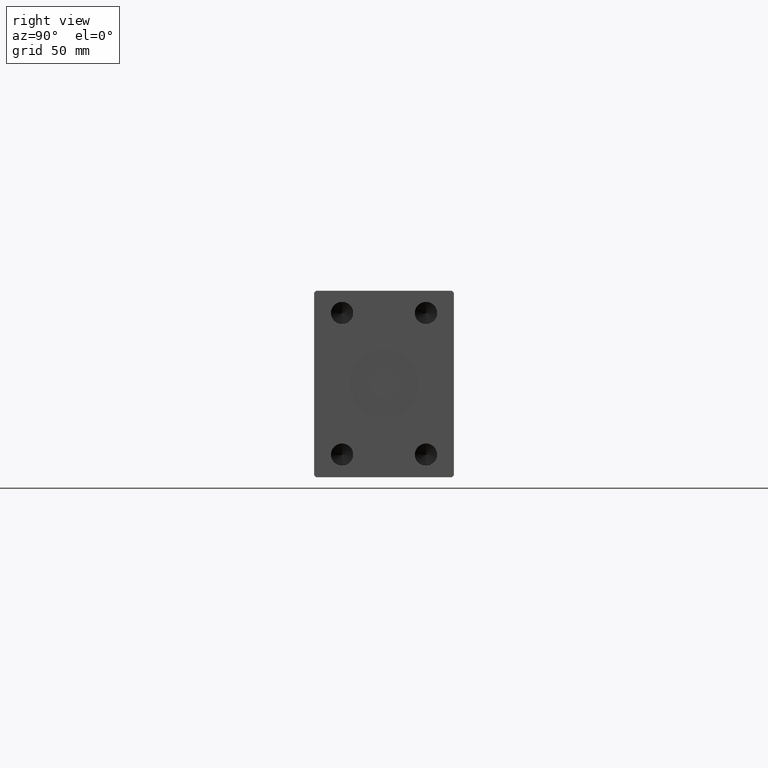
[diagram: clean part render]
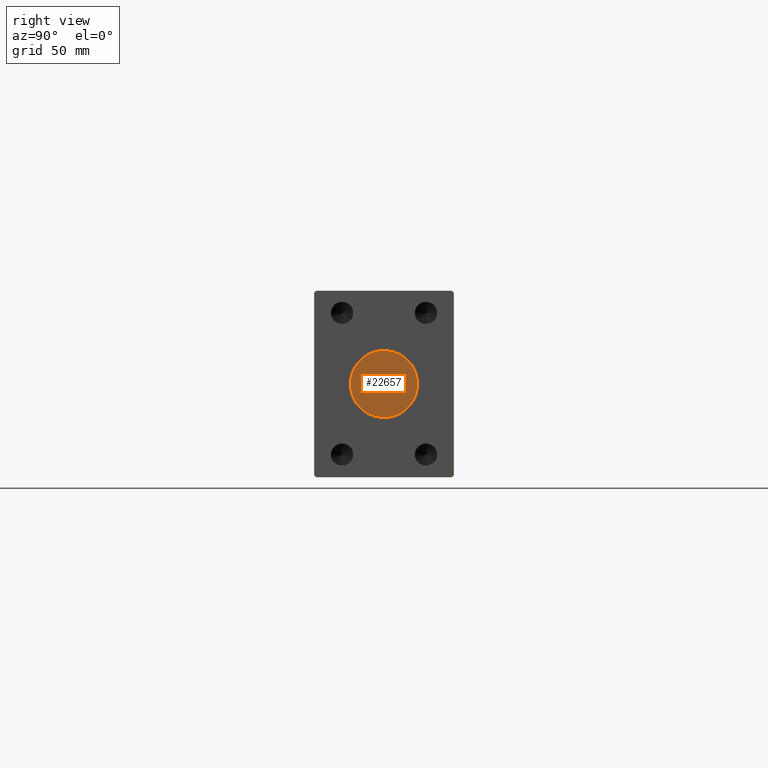
[diagram: same view with one face highlighted and labeled with its STEP entity id]
A machine part, right view. The second image highlights one B-rep face of the part: STEP entity #22657.
In plain terms, the highlighted planar face has unit normal (1, 0, 0).
Its self-contained STEP definition (entity closure, byte-faithful):
#1902 = CARTESIAN_POINT ( 'NONE',  ( 331.8000000000000114, 0.000000000000000000, 0.000000000000000000 ) ) ;
#3645 = AXIS2_PLACEMENT_3D ( 'NONE', #4251, #38654, #17956 ) ;
#4251 = CARTESIAN_POINT ( 'NONE',  ( 331.8000000000000114, 0.000000000000000000, 0.000000000000000000 ) ) ;
#4991 = CARTESIAN_POINT ( 'NONE',  ( 331.8000000000000114, 2.204364238465235428E-15, 18.00000000000000000 ) ) ;
#7112 = CARTESIAN_POINT ( 'NONE',  ( 331.8000000000000114, 0.000000000000000000, -18.00000000000000000 ) ) ;
#12289 = CIRCLE ( 'NONE', #3645, 18.00000000000000000 ) ;
#13077 = EDGE_CURVE ( 'NONE', #39316, #28671, #12289, .T. ) ;
#17297 = PLANE ( 'NONE',  #28325 ) ;
#17644 = AXIS2_PLACEMENT_3D ( 'NONE', #1902, #40335, #43257 ) ;
#17730 = FACE_OUTER_BOUND ( 'NONE', #28978, .T. ) ;
#17956 = DIRECTION ( 'NONE',  ( 0.000000000000000000, 0.000000000000000000, -1.000000000000000000 ) ) ;
#20468 = CARTESIAN_POINT ( 'NONE',  ( 331.8000000000000114, 0.000000000000000000, 0.000000000000000000 ) ) ;
#20899 = DIRECTION ( 'NONE',  ( 1.000000000000000000, 0.000000000000000000, 0.000000000000000000 ) ) ;
#22657 = ADVANCED_FACE ( 'NONE', ( #17730 ), #17297, .T. ) ;
#23175 = ORIENTED_EDGE ( 'NONE', *, *, #13077, .T. ) ;
#25957 = ORIENTED_EDGE ( 'NONE', *, *, #41937, .T. ) ;
#27868 = DIRECTION ( 'NONE',  ( 0.000000000000000000, 0.000000000000000000, -1.000000000000000000 ) ) ;
#28325 = AXIS2_PLACEMENT_3D ( 'NONE', #20468, #20899, #27868 ) ;
#28671 = VERTEX_POINT ( 'NONE', #7112 ) ;
#28978 = EDGE_LOOP ( 'NONE', ( #25957, #23175 ) ) ;
#38654 = DIRECTION ( 'NONE',  ( 1.000000000000000000, 0.000000000000000000, 0.000000000000000000 ) ) ;
#39316 = VERTEX_POINT ( 'NONE', #4991 ) ;
#40335 = DIRECTION ( 'NONE',  ( 1.000000000000000000, 0.000000000000000000, 0.000000000000000000 ) ) ;
#41937 = EDGE_CURVE ( 'NONE', #28671, #39316, #43512, .T. ) ;
#43257 = DIRECTION ( 'NONE',  ( 0.000000000000000000, 0.000000000000000000, -1.000000000000000000 ) ) ;
#43512 = CIRCLE ( 'NONE', #17644, 18.00000000000000000 ) ;